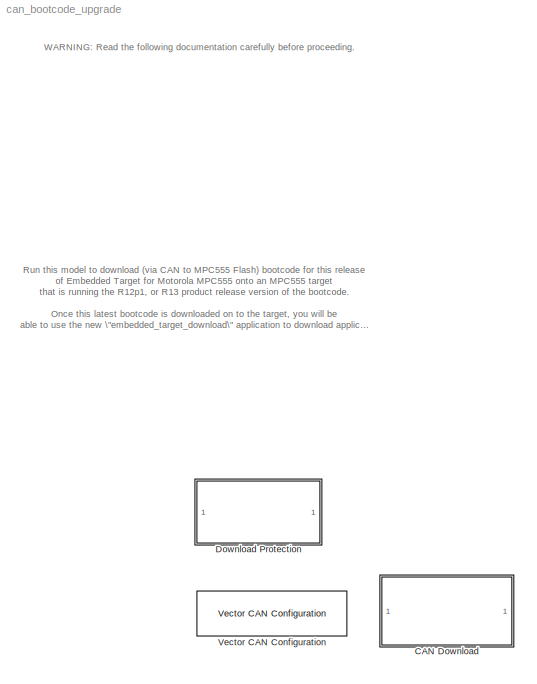
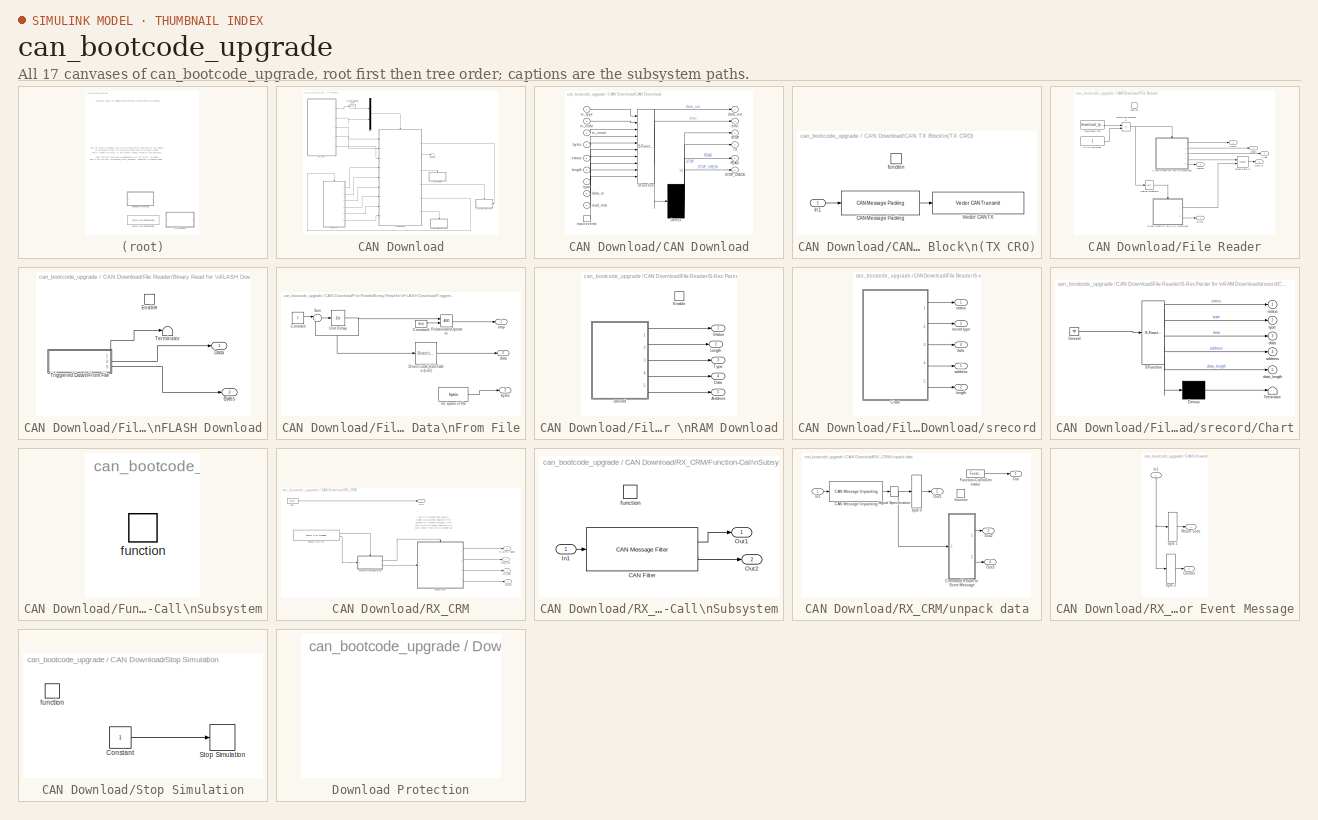
[diagram: thumbnail index - all 17 canvases of the model, root first then tree order]
MODEL can_bootcode_upgrade
KIND model
BLOCK [SubSystem] CAN Download
  MaskCallbackString = ||||
  MaskDisplay = disp('CAN Download');
  MaskEnableString = on,on,on,on,on
  MaskIconFrame = on
  MaskIconOpaque = on
  MaskIconRotate = none
  MaskIconUnits = autoscale
  MaskInitialization = % path to a bin file version of the bootcode\n% for MPC555\ndownload_file = strrep(strrep(mpc5xx_get_bootcode,'CODE_WARRIOR','DIAB'),'s19','bin');\nif (length(download_file) > 256)\n	error('Download Filename longer than 256 characters.');\nend;\n
  MaskPromptString = Download Type|Download Filename|CCP Station Id|CCP CRO Id|CCP DTO Id
  MaskStyleString = popup(RAM Application Code|Flash Application Code|Flash Boot Code),edit,edit,edit,edit
  MaskTabNameString = ,,,,
  MaskToolTipString = on,on,on,on,on
  MaskTunableValueString = off,off,off,off,off
  MaskValueString = Flash Boot Code|0|1|1786|1787
  MaskVarAliasString = ,,,,
  MaskVariables = download_type=@1;download_file=@2;ccp_station_id=@3;ccp_cro_id=@4;ccp_dto_id=@5;
  MaskVisibilityString = on,off,on,on,on
  MinAlgLoopOccurrences = off
  Ports = []
  PropExecContextAcrossSSBoundary = on
  RTWSystemCode = Auto
  TreatAsAtomicUnit = off
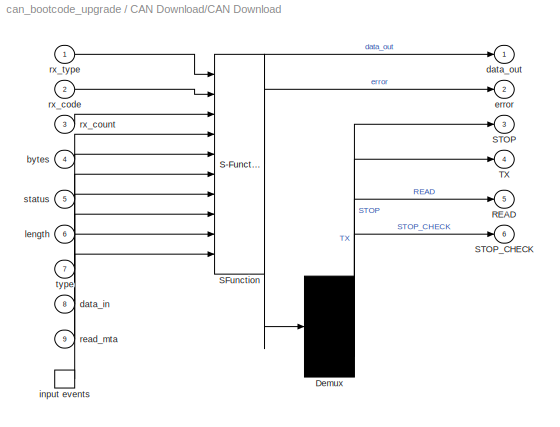
BLOCK [SubSystem] CAN Download/CAN Download
  MaskDescription = Stateflow diagram
  MaskDisplay = plot(sf('Private','sfblk','xIcon'),sf('Private','sfblk','yIcon'));text(0.5,0,sf('Private', 'sfblk', 'tIcon'),'HorizontalAl','Center','VerticalAl','Bottom');
  MaskIconFrame = off
  MaskIconOpaque = off
  MaskIconRotate = none
  MaskIconUnits = autoscale
  MaskSelfModifiable = on
  MaskType = Stateflow
  MinAlgLoopOccurrences = off
  Ports = [9, 6, 0, 1]
  PropExecContextAcrossSSBoundary = on
  RTWSystemCode = Auto
  TreatAsAtomicUnit = on
BLOCK [Demux] CAN Download/CAN Download/ Demux 
  Ports = [1, 4]
BLOCK [S-Function] CAN Download/CAN Download/ SFunction 
  FunctionName = sf_sfun
  Parameters = ccp_station_id,download_type
  PortCounts = [10 3]
  Ports = [10, 3]
  Tag = Stateflow S-Function can_bootcode_upgrade 3
BLOCK [TriggerPort] CAN Download/CAN Download/ input events 
  Ports = [0, 1]
  ShowOutputPort = on
  StatesWhenEnabling = reset
  TriggerType = function-call
  ZeroCross = off
BLOCK [Outport] CAN Download/CAN Download/READ
  IconDisplay = Port number
  Port = 5
BLOCK [Outport] CAN Download/CAN Download/STOP
  IconDisplay = Port number
  Port = 3
BLOCK [Outport] CAN Download/CAN Download/STOP_CHECK
  IconDisplay = Port number
  Port = 6
BLOCK [Outport] CAN Download/CAN Download/TX
  IconDisplay = Port number
  Port = 4
BLOCK [Inport] CAN Download/CAN Download/bytes
  IconDisplay = Port number
  LatchInput = off
  Port = 4
BLOCK [Inport] CAN Download/CAN Download/data_in
  IconDisplay = Port number
  LatchInput = off
  Port = 8
BLOCK [Outport] CAN Download/CAN Download/data_out
  IconDisplay = Port number
BLOCK [Outport] CAN Download/CAN Download/error
  IconDisplay = Port number
  Port = 2
BLOCK [Inport] CAN Download/CAN Download/length
  IconDisplay = Port number
  LatchInput = off
  Port = 6
BLOCK [Inport] CAN Download/CAN Download/read_mta
  IconDisplay = Port number
  LatchInput = off
  Port = 9
BLOCK [Inport] CAN Download/CAN Download/rx_code
  IconDisplay = Port number
  LatchInput = off
  Port = 2
BLOCK [Inport] CAN Download/CAN Download/rx_count
  IconDisplay = Port number
  LatchInput = off
  Port = 3
BLOCK [Inport] CAN Download/CAN Download/rx_type
  IconDisplay = Port number
  LatchInput = off
  Port = 1
BLOCK [Inport] CAN Download/CAN Download/status
  IconDisplay = Port number
  LatchInput = off
  Port = 5
BLOCK [Inport] CAN Download/CAN Download/type
  IconDisplay = Port number
  LatchInput = off
  Port = 7
BLOCK [SubSystem] CAN Download/CAN TX Block\n(TX CRO)
  MinAlgLoopOccurrences = off
  Ports = [1, 0, 0, 1]
  PropExecContextAcrossSSBoundary = on
  RTWSystemCode = Auto
  TreatAsAtomicUnit = on
BLOCK [Reference] CAN Download/CAN TX Block\n(TX CRO)/CAN Message Packing  REF=canblocks/CAN Message Packing  (lib defined in mdl_23c95c2b4c34)
  Ports = [1, 1]
  SourceBlock = canblocks/CAN Message Packing
  SourceType = CAN Message Packing
  endian = Little Endian (Intel)
  id = ccp_cro_id
  message_type = Extended (29-bit identifier)
BLOCK [Inport] CAN Download/CAN TX Block\n(TX CRO)/In1
  IconDisplay = Port number
  LatchInput = off
  Port = 1
BLOCK [Reference] CAN Download/CAN TX Block\n(TX CRO)/Vector CAN TX  REF=vector_candrivers/Vector CAN Transmit
  Ports = [1]
  SourceBlock = vector_candrivers/Vector CAN Transmit
  SourceType = Vector CAN Transmit
  Tag = config1
  sample_time = -1
  tag_param = config1
BLOCK [TriggerPort] CAN Download/CAN TX Block\n(TX CRO)/function
  Ports = []
  StatesWhenEnabling = reset
  TriggerType = function-call
  ZeroCross = off
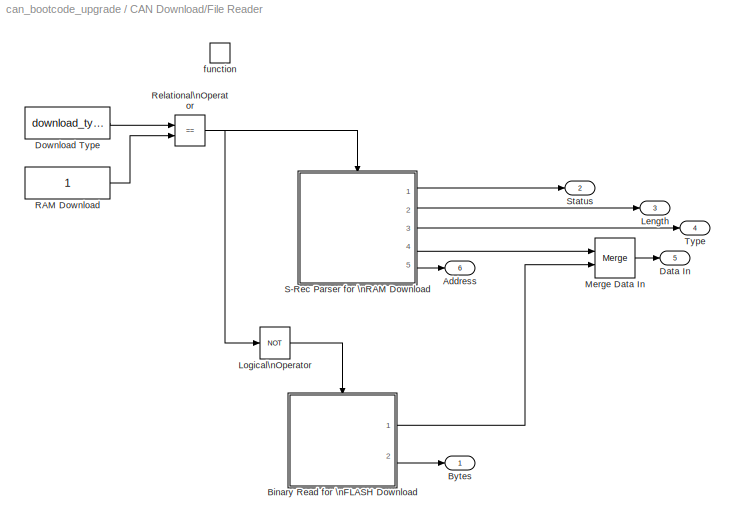
BLOCK [SubSystem] CAN Download/File Reader
  MinAlgLoopOccurrences = off
  Ports = [0, 6, 0, 1]
  PropExecContextAcrossSSBoundary = on
  RTWSystemCode = Auto
  TreatAsAtomicUnit = on
BLOCK [Outport] CAN Download/File Reader/Address
  IconDisplay = Port number
  Port = 6
BLOCK [SubSystem] CAN Download/File Reader/Binary Read for \nFLASH Download
  MinAlgLoopOccurrences = off
  Ports = [0, 2, 1]
  PropExecContextAcrossSSBoundary = on
  RTWSystemCode = Auto
  TreatAsAtomicUnit = on
BLOCK [Outport] CAN Download/File Reader/Binary Read for \nFLASH Download/Bytes
  IconDisplay = Port number
  Port = 2
BLOCK [Outport] CAN Download/File Reader/Binary Read for \nFLASH Download/Data
  IconDisplay = Port number
BLOCK [EnablePort] CAN Download/File Reader/Binary Read for \nFLASH Download/Enable
  Ports = []
  ZeroCross = off
BLOCK [Terminator] CAN Download/File Reader/Binary Read for \nFLASH Download/Terminator
BLOCK [SubSystem] CAN Download/File Reader/Binary Read for \nFLASH Download/Triggered Data\nFrom File
  MaskCallbackString = ||
  MaskDescription = Read a binary file according to the datatype and output the data N bytes at a time. Extra zeros will be padded to the last record if the file is not divisible by N.\n\nThis block will also stop the model when no data is left in the file so set the run time of the model to inf.
  MaskEnableString = on,on,on
  MaskIconFrame = on
  MaskIconOpaque = on
  MaskIconRotate = none
  MaskIconUnits = autoscale
  MaskInitialization = f = fopen(file_name);\ndata = fread(f,inf,['*' dataType ]);\nfclose(f);\nbytes = size(data,1);\ndata = [ data ; zeros(elements-rem(length(data),elements),1) ];\ndata = reshape(data,elements,[]);\nstop = size(data,2)-1;\n\n
  MaskPromptString = File Name|DataType|Number of elements per sample.
  MaskStyleString = edit,popup(uchar|schar|int8|int16|int32|int64|uint8|uint16|uint32|single|float32|double|float64),edit
  MaskTabNameString = ,,
  MaskToolTipString = on,on,on
  MaskTunableValueString = off,off,off
  MaskValueString = download_file|uint8|6
  MaskVarAliasString = ,,
  MaskVariables = file_name=@1;dataType=&2;elements=@3;
  MaskVisibilityString = on,on,on
  MinAlgLoopOccurrences = off
  Ports = [0, 3]
  PropExecContextAcrossSSBoundary = on
  RTWSystemCode = Auto
  TreatAsAtomicUnit = on
BLOCK [Constant] CAN Download/File Reader/Binary Read for \nFLASH Download/Triggered Data\nFrom File/Constant
BLOCK [Constant] CAN Download/File Reader/Binary Read for \nFLASH Download/Triggered Data\nFrom File/Constant1
  Value = stop
BLOCK [Reference] CAN Download/File Reader/Binary Read for \nFLASH Download/Triggered Data\nFrom File/Direct Look-Up\nTable (n-D)  REF=simulink/Lookup\nTables/Direct Lookup\nTable (n-D)
  Ports = [1, 1]
  SourceBlock = simulink/Lookup\nTables/Direct Lookup\nTable (n-D)
  SourceType = LookupNDDirect
  clipFlag = Error
  explicitNumDims = 1
  maskTabDims = 2
  mxTable = data
  outDims = Column
  tabIsInput = off
BLOCK [RelationalOperator] CAN Download/File Reader/Binary Read for \nFLASH Download/Triggered Data\nFrom File/Relational\nOperator
  ZeroCross = off
BLOCK [Sum] CAN Download/File Reader/Binary Read for \nFLASH Download/Triggered Data\nFrom File/Sum
  IconShape = round
  Inputs = |++
  Ports = [2, 1]
BLOCK [UnitDelay] CAN Download/File Reader/Binary Read for \nFLASH Download/Triggered Data\nFrom File/Unit Delay
  SampleTime = -1
BLOCK [Outport] CAN Download/File Reader/Binary Read for \nFLASH Download/Triggered Data\nFrom File/bytes
  IconDisplay = Port number
  Port = 3
BLOCK [Outport] CAN Download/File Reader/Binary Read for \nFLASH Download/Triggered Data\nFrom File/data
  IconDisplay = Port number
  Port = 2
BLOCK [Constant] CAN Download/File Reader/Binary Read for \nFLASH Download/Triggered Data\nFrom File/no. bytes in file
  Value = bytes
BLOCK [Outport] CAN Download/File Reader/Binary Read for \nFLASH Download/Triggered Data\nFrom File/stop
  IconDisplay = Port number
BLOCK [Outport] CAN Download/File Reader/Bytes
  IconDisplay = Port number
BLOCK [Outport] CAN Download/File Reader/Data In
  IconDisplay = Port number
  Port = 5
BLOCK [Constant] CAN Download/File Reader/Download Type
  Value = download_type
BLOCK [Outport] CAN Download/File Reader/Length
  IconDisplay = Port number
  Port = 3
BLOCK [Logic] CAN Download/File Reader/Logical\nOperator
  Operator = NOT
  Ports = [1, 1]
BLOCK [Merge] CAN Download/File Reader/Merge Data In
  Ports = [2, 1]
BLOCK [Constant] CAN Download/File Reader/RAM Download
BLOCK [RelationalOperator] CAN Download/File Reader/Relational\nOperator
  Operator = ==
  ZeroCross = off
BLOCK [SubSystem] CAN Download/File Reader/S-Rec Parser for \nRAM Download
  MinAlgLoopOccurrences = off
  Ports = [0, 5, 1]
  PropExecContextAcrossSSBoundary = on
  RTWSystemCode = Auto
  TreatAsAtomicUnit = on
BLOCK [Outport] CAN Download/File Reader/S-Rec Parser for \nRAM Download/Address
  IconDisplay = Port number
  Port = 5
BLOCK [Outport] CAN Download/File Reader/S-Rec Parser for \nRAM Download/Data
  IconDisplay = Port number
  Port = 4
BLOCK [EnablePort] CAN Download/File Reader/S-Rec Parser for \nRAM Download/Enable
  Ports = []
  ZeroCross = off
BLOCK [Outport] CAN Download/File Reader/S-Rec Parser for \nRAM Download/Length
  IconDisplay = Port number
  Port = 2
BLOCK [Outport] CAN Download/File Reader/S-Rec Parser for \nRAM Download/Status
  IconDisplay = Port number
BLOCK [Outport] CAN Download/File Reader/S-Rec Parser for \nRAM Download/Type
  IconDisplay = Port number
  Port = 3
BLOCK [SubSystem] CAN Download/File Reader/S-Rec Parser for \nRAM Download/srecord
  MaskEnableString = on
  MaskIconFrame = on
  MaskIconOpaque = on
  MaskIconRotate = none
  MaskIconUnits = autoscale
  MaskInitialization = fileName = uint8([ name zeros(1,256 - length(name))]);
  MaskPromptString = fileName
  MaskStyleString = edit
  MaskToolTipString = on
  MaskTunableValueString = off
  MaskValueString = download_file
  MaskVariables = name=@1;
  MaskVisibilityString = on
  MinAlgLoopOccurrences = off
  Ports = [0, 5]
  PropExecContextAcrossSSBoundary = on
  RTWSystemCode = Auto
  TreatAsAtomicUnit = off
BLOCK [SubSystem] CAN Download/File Reader/S-Rec Parser for \nRAM Download/srecord/Chart
  MaskDescription = Stateflow diagram
  MaskDisplay = plot(sf('Private','sfblk','xIcon'),sf('Private','sfblk','yIcon'));text(0.5,0,sf('Private', 'sfblk', 'tIcon'),'HorizontalAl','Center','VerticalAl','Bottom');
  MaskIconFrame = off
  MaskIconOpaque = off
  MaskIconRotate = none
  MaskIconUnits = autoscale
  MaskSelfModifiable = on
  MaskType = Stateflow
  MinAlgLoopOccurrences = off
  Ports = [0, 5]
  PropExecContextAcrossSSBoundary = on
  RTWSystemCode = Auto
  TreatAsAtomicUnit = off
BLOCK [Demux] CAN Download/File Reader/S-Rec Parser for \nRAM Download/srecord/Chart/ Demux 
  Outputs = 1
  Ports = [1, 1]
BLOCK [Ground] CAN Download/File Reader/S-Rec Parser for \nRAM Download/srecord/Chart/ Ground 
BLOCK [S-Function] CAN Download/File Reader/S-Rec Parser for \nRAM Download/srecord/Chart/ SFunction 
  FunctionName = sf_sfun
  Parameters = fileName
  PortCounts = [1 6]
  Ports = [1, 6]
  Tag = Stateflow S-Function can_bootcode_upgrade 1
BLOCK [Terminator] CAN Download/File Reader/S-Rec Parser for \nRAM Download/srecord/Chart/ Terminator 
BLOCK [Outport] CAN Download/File Reader/S-Rec Parser for \nRAM Download/srecord/Chart/address
  IconDisplay = Port number
  Port = 4
BLOCK [Outport] CAN Download/File Reader/S-Rec Parser for \nRAM Download/srecord/Chart/data
  IconDisplay = Port number
  Port = 3
BLOCK [Outport] CAN Download/File Reader/S-Rec Parser for \nRAM Download/srecord/Chart/data_length
  IconDisplay = Port number
  Port = 5
BLOCK [Outport] CAN Download/File Reader/S-Rec Parser for \nRAM Download/srecord/Chart/status
  IconDisplay = Port number
BLOCK [Outport] CAN Download/File Reader/S-Rec Parser for \nRAM Download/srecord/Chart/type
  IconDisplay = Port number
  Port = 2
BLOCK [Outport] CAN Download/File Reader/S-Rec Parser for \nRAM Download/srecord/address
  IconDisplay = Port number
  Port = 5
BLOCK [Outport] CAN Download/File Reader/S-Rec Parser for \nRAM Download/srecord/data
  IconDisplay = Port number
  Port = 4
BLOCK [Outport] CAN Download/File Reader/S-Rec Parser for \nRAM Download/srecord/length
  IconDisplay = Port number
  Port = 2
BLOCK [Outport] CAN Download/File Reader/S-Rec Parser for \nRAM Download/srecord/record type
  IconDisplay = Port number
  Port = 3
BLOCK [Outport] CAN Download/File Reader/S-Rec Parser for \nRAM Download/srecord/status
  IconDisplay = Port number
BLOCK [Outport] CAN Download/File Reader/Status
  IconDisplay = Port number
  Port = 2
BLOCK [Outport] CAN Download/File Reader/Type
  IconDisplay = Port number
  Port = 4
BLOCK [TriggerPort] CAN Download/File Reader/function
  Ports = []
  StatesWhenEnabling = reset
  TriggerType = function-call
  ZeroCross = off
BLOCK [Reference] CAN Download/Function-Call\nMulticaster  REF=mpc555extras/Function-Call\nMulticaster
  Ports = [1, 1]
  ShowPortLabels = on
  SourceBlock = mpc555extras/Function-Call\nMulticaster
  SourceType = Function Call Multicaster
BLOCK [SubSystem] CAN Download/Function-Call\nSubsystem
  MinAlgLoopOccurrences = off
  Ports = [0, 0, 0, 1]
  PropExecContextAcrossSSBoundary = on
  RTWSystemCode = Auto
  TreatAsAtomicUnit = on
BLOCK [TriggerPort] CAN Download/Function-Call\nSubsystem/function
  Ports = []
  StatesWhenEnabling = reset
  TriggerType = function-call
  ZeroCross = off
BLOCK [Mux] CAN Download/Mux
  DisplayOption = bar
  Inputs = 2
  Ports = [2, 1]
BLOCK [SubSystem] CAN Download/RX_CRM
  MinAlgLoopOccurrences = off
  Ports = [0, 5]
  PropExecContextAcrossSSBoundary = on
  RTWSystemCode = Auto
  TreatAsAtomicUnit = off
BLOCK [SubSystem] CAN Download/RX_CRM/Function-Call\nSubsystem
  MinAlgLoopOccurrences = off
  Ports = [1, 2, 0, 1]
  PropExecContextAcrossSSBoundary = on
  RTWSystemCode = Auto
  TreatAsAtomicUnit = on
BLOCK [Reference] CAN Download/RX_CRM/Function-Call\nSubsystem/CAN Filter  REF=canblocks/CAN Message Filter  (lib defined in mdl_23c95c2b4c34)
  Ports = [1, 2]
  ShowPortLabels = on
  SourceBlock = canblocks/CAN Message Filter
  SourceType = CAN Message Filter
  id = [ccp_dto_id]
BLOCK [Inport] CAN Download/RX_CRM/Function-Call\nSubsystem/In1
  IconDisplay = Port number
  LatchInput = off
  Port = 1
BLOCK [Outport] CAN Download/RX_CRM/Function-Call\nSubsystem/Out1
  IconDisplay = Port number
BLOCK [Outport] CAN Download/RX_CRM/Function-Call\nSubsystem/Out2
  IconDisplay = Port number
  Port = 2
BLOCK [TriggerPort] CAN Download/RX_CRM/Function-Call\nSubsystem/function
  Ports = []
  StatesWhenEnabling = reset
  TriggerType = function-call
  ZeroCross = off
BLOCK [Outport] CAN Download/RX_CRM/RX_DTO trigger
  IconDisplay = Port number
  Port = 2
BLOCK [Outport] CAN Download/RX_CRM/TICK
  IconDisplay = Port number
BLOCK [Reference] CAN Download/RX_CRM/Tick  REF=simulink/Ports &\nSubsystems/Function-Call\nGenerator
  AttributesFormatString = Priority=%<Priority>
  Ports = [0, 1]
  Priority = 3
  SourceBlock = simulink/Ports &\nSubsystems/Function-Call\nGenerator
  SourceType = Function-Call Generator
  numberOfIterations = 1
  sample_time = 1
BLOCK [Reference] CAN Download/RX_CRM/Vector CAN RX  REF=vector_candrivers/Vector CAN Receive
  Ports = [0, 2]
  SourceBlock = vector_candrivers/Vector CAN Receive
  SourceType = Vector CAN Receive
  Tag = config1
  frame_type_in = Extended (29-bit identifier)
  ids = ccp_dto_id
  loop = off
  output_time = off
  sample_time = 0.05
  tag_param = config1
BLOCK [Outport] CAN Download/RX_CRM/counter
  IconDisplay = Port number
  Port = 5
BLOCK [Outport] CAN Download/RX_CRM/msg_type
  IconDisplay = Port number
  Port = 3
BLOCK [Outport] CAN Download/RX_CRM/rtn_code
  IconDisplay = Port number
  Port = 4
BLOCK [SubSystem] CAN Download/RX_CRM/unpack data
  MinAlgLoopOccurrences = off
  Ports = [1, 4, 0, 1]
  PropExecContextAcrossSSBoundary = on
  RTWSystemCode = Auto
  TreatAsAtomicUnit = on
BLOCK [Reference] CAN Download/RX_CRM/unpack data/CAN Message Unpacking  REF=canblocks/CAN Message Unpacking/CAN Message Unpacking  (lib defined in mdl_23c95c2b4c34)
  Ports = [1, 1]
  SourceBlock = canblocks/CAN Message Unpacking/CAN Message Unpacking
  SourceType = CAN Message Unpacking
  endian = Little Endian (Intel)
  showData = on
  showID = off
  showLength = off
BLOCK [SubSystem] CAN Download/RX_CRM/unpack data/Command Return or Event Message
  MinAlgLoopOccurrences = off
  Ports = [1, 2]
  PropExecContextAcrossSSBoundary = on
  RTWSystemCode = Auto
  TreatAsAtomicUnit = off
BLOCK [Outport] CAN Download/RX_CRM/unpack data/Command Return or Event Message/Counter
  IconDisplay = Port number
  Port = 2
BLOCK [Inport] CAN Download/RX_CRM/unpack data/Command Return or Event Message/In1
  IconDisplay = Port number
  LatchInput = off
  Port = 1
BLOCK [Outport] CAN Download/RX_CRM/unpack data/Command Return or Event Message/Return Code
  IconDisplay = Port number
BLOCK [Selector] CAN Download/RX_CRM/unpack data/Command Return or Event Message/byte 1
  Elements = 2
  InputPortWidth = 8
  Ports = [1, 1]
BLOCK [Selector] CAN Download/RX_CRM/unpack data/Command Return or Event Message/byte 2
  Elements = 3
  InputPortWidth = 8
  Ports = [1, 1]
BLOCK [Reference] CAN Download/RX_CRM/unpack data/Function-Call\nGenerator  REF=simulink/Ports &\nSubsystems/Function-Call\nGenerator
  Ports = [0, 1]
  SourceBlock = simulink/Ports &\nSubsystems/Function-Call\nGenerator
  SourceType = Function-Call Generator
  numberOfIterations = 1
  sample_time = -1
BLOCK [Inport] CAN Download/RX_CRM/unpack data/In1
  IconDisplay = Port number
  LatchInput = off
  Port = 1
BLOCK [Outport] CAN Download/RX_CRM/unpack data/Out
  IconDisplay = Port number
BLOCK [Outport] CAN Download/RX_CRM/unpack data/Out1
  IconDisplay = Port number
  Port = 2
BLOCK [Outport] CAN Download/RX_CRM/unpack data/Out2
  IconDisplay = Port number
  Port = 3
BLOCK [Outport] CAN Download/RX_CRM/unpack data/Out3
  IconDisplay = Port number
  Port = 4
BLOCK [SignalSpecification] CAN Download/RX_CRM/unpack data/Signal Specification
  DataType = uint8
  Dimensions = 8
BLOCK [Selector] CAN Download/RX_CRM/unpack data/byte 0
  InputPortWidth = 8
  Ports = [1, 1]
BLOCK [TriggerPort] CAN Download/RX_CRM/unpack data/function
  Ports = []
  StatesWhenEnabling = reset
  TriggerType = function-call
  ZeroCross = off
BLOCK [SubSystem] CAN Download/Stop Simulation
  MinAlgLoopOccurrences = off
  Ports = [0, 0, 0, 1]
  PropExecContextAcrossSSBoundary = on
  RTWSystemCode = Auto
  TreatAsAtomicUnit = on
BLOCK [Constant] CAN Download/Stop Simulation/Constant
BLOCK [Stop] CAN Download/Stop Simulation/Stop Simulation
BLOCK [TriggerPort] CAN Download/Stop Simulation/function
  Ports = []
  StatesWhenEnabling = reset
  TriggerType = function-call
  ZeroCross = off
BLOCK [Terminator] CAN Download/Terminator
BLOCK [SubSystem] Download Protection
  LoadFcn = set_param(gcb,'userdata',1);           \nset_param(gcb,'backgroundcolor','red');
  MaskDisplay = disp('Download Protection');
  MaskIconFrame = on
  MaskIconOpaque = on
  MaskIconRotate = none
  MaskIconUnits = autoscale
  MaskInitialization = protection=get_param(gcb,'userdata');\nif protection==1\n	error('Please read the documentation, and then unlock this download model by double clicking the \"Download Protection\". Then try running the model again.');\nend
  MinAlgLoopOccurrences = off
  OpenFcn = set_param(gcb,'userdata',0);             \nset_param(gcb,'backgroundcolor','green');
  Ports = []
  PropExecContextAcrossSSBoundary = on
  RTWSystemCode = Auto
  StopFcn = set_param(gcb,'userdata',1);           \nset_param(gcb,'backgroundcolor','red');
  TreatAsAtomicUnit = off
BLOCK [Reference] Vector CAN Configuration  REF=vector_candrivers/Vector CAN Configuration
  Ports = []
  ShowPortLabels = on
  SourceBlock = vector_candrivers/Vector CAN Configuration
  SourceType = Vector CAN Configuration
  baud_rate = 500 kBaud
  channel_param = None
  manual_bit_timings = off
  presc_in = 1
  sam_in = 1 sample per bit
  sjw_in = 1
  tag_param = config1
  tseg1_in = 8
  tseg2_in = 7
ANNOTATION (root): Run this model to download (via CAN to MPC555 Flash) bootcode for this release\nof Embedded Target for Motorola MPC555 onto an MPC555 target\nthat is running the R12p1, or R13 product release version of the bootcode.\n\nOnce this latest bootcode is downloaded on to the target, you will be \nable to use the new \"embedded_target_download\" application to download application \ncode or new bootcode ...<+665ch>
ANNOTATION (root): WARNING: Read the following documentation carefully before proceeding.
ANNOTATION CAN Download/RX_CRM: The TICK function call is used to \ntrigger the Stateflow diagram in the \nabsence of a received message. Note \nthat the TICK function call is set to a \nlower priority than the RX function call.
LINE CAN Download/CAN Download/ Demux :1 -> CAN Download/CAN Download/STOP:1
LINE CAN Download/CAN Download/ Demux :2 -> CAN Download/CAN Download/TX:1
LINE CAN Download/CAN Download/ Demux :3 -> CAN Download/CAN Download/READ:1
LINE CAN Download/CAN Download/ Demux :4 -> CAN Download/CAN Download/STOP_CHECK:1
LINE CAN Download/CAN Download/ SFunction :1 -> CAN Download/CAN Download/ Demux :1
LINE CAN Download/CAN Download/ SFunction :2 -> CAN Download/CAN Download/data_out:1
LINE CAN Download/CAN Download/ SFunction :3 -> CAN Download/CAN Download/error:1
LINE CAN Download/CAN Download/ input events :1 -> CAN Download/CAN Download/ SFunction :10
LINE CAN Download/CAN Download/bytes:1 -> CAN Download/CAN Download/ SFunction :4
LINE CAN Download/CAN Download/data_in:1 -> CAN Download/CAN Download/ SFunction :8
LINE CAN Download/CAN Download/length:1 -> CAN Download/CAN Download/ SFunction :6
LINE CAN Download/CAN Download/read_mta:1 -> CAN Download/CAN Download/ SFunction :9
LINE CAN Download/CAN Download/rx_code:1 -> CAN Download/CAN Download/ SFunction :2
LINE CAN Download/CAN Download/rx_count:1 -> CAN Download/CAN Download/ SFunction :3
LINE CAN Download/CAN Download/rx_type:1 -> CAN Download/CAN Download/ SFunction :1
LINE CAN Download/CAN Download/status:1 -> CAN Download/CAN Download/ SFunction :5
LINE CAN Download/CAN Download/type:1 -> CAN Download/CAN Download/ SFunction :7
LINE CAN Download/CAN Download:1 -> CAN Download/CAN TX Block\n(TX CRO):1
LINE CAN Download/CAN Download:2 -> CAN Download/Terminator:1
LINE CAN Download/CAN Download:3 -> CAN Download/Stop Simulation:trigger
LINE CAN Download/CAN Download:4 -> CAN Download/CAN TX Block\n(TX CRO):trigger
LINE CAN Download/CAN Download:5 -> CAN Download/File Reader:trigger
LINE CAN Download/CAN Download:6 -> CAN Download/Function-Call\nSubsystem:trigger
LINE CAN Download/CAN TX Block\n(TX CRO)/CAN Message Packing:1 -> CAN Download/CAN TX Block\n(TX CRO)/Vector CAN TX:1
LINE CAN Download/CAN TX Block\n(TX CRO)/In1:1 -> CAN Download/CAN TX Block\n(TX CRO)/CAN Message Packing:1
LINE CAN Download/File Reader/Binary Read for \nFLASH Download/Triggered Data\nFrom File/Constant1:1 -> CAN Download/File Reader/Binary Read for \nFLASH Download/Triggered Data\nFrom File/Relational\nOperator:2
LINE CAN Download/File Reader/Binary Read for \nFLASH Download/Triggered Data\nFrom File/Constant:1 -> CAN Download/File Reader/Binary Read for \nFLASH Download/Triggered Data\nFrom File/Sum:1
LINE CAN Download/File Reader/Binary Read for \nFLASH Download/Triggered Data\nFrom File/Direct Look-Up\nTable (n-D):1 -> CAN Download/File Reader/Binary Read for \nFLASH Download/Triggered Data\nFrom File/data:1
LINE CAN Download/File Reader/Binary Read for \nFLASH Download/Triggered Data\nFrom File/Relational\nOperator:1 -> CAN Download/File Reader/Binary Read for \nFLASH Download/Triggered Data\nFrom File/stop:1
LINE CAN Download/File Reader/Binary Read for \nFLASH Download/Triggered Data\nFrom File/Sum:1 -> CAN Download/File Reader/Binary Read for \nFLASH Download/Triggered Data\nFrom File/Unit Delay:1
NET CAN Download/File Reader/Binary Read for \nFLASH Download/Triggered Data\nFrom File/Unit Delay:1 -> CAN Download/File Reader/Binary Read for \nFLASH Download/Triggered Data\nFrom File/Direct Look-Up\nTable (n-D):1, CAN Download/File Reader/Binary Read for \nFLASH Download/Triggered Data\nFrom File/Relational\nOperator:1, CAN Download/File Reader/Binary Read for \nFLASH Download/Triggered Data\nFrom File/Sum:2
LINE CAN Download/File Reader/Binary Read for \nFLASH Download/Triggered Data\nFrom File/no. bytes in file:1 -> CAN Download/File Reader/Binary Read for \nFLASH Download/Triggered Data\nFrom File/bytes:1
LINE CAN Download/File Reader/Binary Read for \nFLASH Download/Triggered Data\nFrom File:1 -> CAN Download/File Reader/Binary Read for \nFLASH Download/Terminator:1
LINE CAN Download/File Reader/Binary Read for \nFLASH Download/Triggered Data\nFrom File:2 -> CAN Download/File Reader/Binary Read for \nFLASH Download/Data:1
LINE CAN Download/File Reader/Binary Read for \nFLASH Download/Triggered Data\nFrom File:3 -> CAN Download/File Reader/Binary Read for \nFLASH Download/Bytes:1
LINE CAN Download/File Reader/Binary Read for \nFLASH Download:1 -> CAN Download/File Reader/Merge Data In:2
LINE CAN Download/File Reader/Binary Read for \nFLASH Download:2 -> CAN Download/File Reader/Bytes:1
LINE CAN Download/File Reader/Download Type:1 -> CAN Download/File Reader/Relational\nOperator:1
LINE CAN Download/File Reader/Logical\nOperator:1 -> CAN Download/File Reader/Binary Read for \nFLASH Download:enable
LINE CAN Download/File Reader/Merge Data In:1 -> CAN Download/File Reader/Data In:1
LINE CAN Download/File Reader/RAM Download:1 -> CAN Download/File Reader/Relational\nOperator:2
NET CAN Download/File Reader/Relational\nOperator:1 -> CAN Download/File Reader/Logical\nOperator:1, CAN Download/File Reader/S-Rec Parser for \nRAM Download:enable
LINE CAN Download/File Reader/S-Rec Parser for \nRAM Download/srecord/Chart/ Demux :1 -> CAN Download/File Reader/S-Rec Parser for \nRAM Download/srecord/Chart/ Terminator :1
LINE CAN Download/File Reader/S-Rec Parser for \nRAM Download/srecord/Chart/ Ground :1 -> CAN Download/File Reader/S-Rec Parser for \nRAM Download/srecord/Chart/ SFunction :1
LINE CAN Download/File Reader/S-Rec Parser for \nRAM Download/srecord/Chart/ SFunction :1 -> CAN Download/File Reader/S-Rec Parser for \nRAM Download/srecord/Chart/ Demux :1
LINE CAN Download/File Reader/S-Rec Parser for \nRAM Download/srecord/Chart/ SFunction :2 -> CAN Download/File Reader/S-Rec Parser for \nRAM Download/srecord/Chart/status:1
LINE CAN Download/File Reader/S-Rec Parser for \nRAM Download/srecord/Chart/ SFunction :3 -> CAN Download/File Reader/S-Rec Parser for \nRAM Download/srecord/Chart/type:1
LINE CAN Download/File Reader/S-Rec Parser for \nRAM Download/srecord/Chart/ SFunction :4 -> CAN Download/File Reader/S-Rec Parser for \nRAM Download/srecord/Chart/data:1
LINE CAN Download/File Reader/S-Rec Parser for \nRAM Download/srecord/Chart/ SFunction :5 -> CAN Download/File Reader/S-Rec Parser for \nRAM Download/srecord/Chart/address:1
LINE CAN Download/File Reader/S-Rec Parser for \nRAM Download/srecord/Chart/ SFunction :6 -> CAN Download/File Reader/S-Rec Parser for \nRAM Download/srecord/Chart/data_length:1
LINE CAN Download/File Reader/S-Rec Parser for \nRAM Download/srecord/Chart:1 -> CAN Download/File Reader/S-Rec Parser for \nRAM Download/srecord/status:1
LINE CAN Download/File Reader/S-Rec Parser for \nRAM Download/srecord/Chart:2 -> CAN Download/File Reader/S-Rec Parser for \nRAM Download/srecord/record type:1
LINE CAN Download/File Reader/S-Rec Parser for \nRAM Download/srecord/Chart:3 -> CAN Download/File Reader/S-Rec Parser for \nRAM Download/srecord/data:1
LINE CAN Download/File Reader/S-Rec Parser for \nRAM Download/srecord/Chart:4 -> CAN Download/File Reader/S-Rec Parser for \nRAM Download/srecord/address:1
LINE CAN Download/File Reader/S-Rec Parser for \nRAM Download/srecord/Chart:5 -> CAN Download/File Reader/S-Rec Parser for \nRAM Download/srecord/length:1
LINE CAN Download/File Reader/S-Rec Parser for \nRAM Download/srecord:1 -> CAN Download/File Reader/S-Rec Parser for \nRAM Download/Status:1
LINE CAN Download/File Reader/S-Rec Parser for \nRAM Download/srecord:2 -> CAN Download/File Reader/S-Rec Parser for \nRAM Download/Length:1
LINE CAN Download/File Reader/S-Rec Parser for \nRAM Download/srecord:3 -> CAN Download/File Reader/S-Rec Parser for \nRAM Download/Type:1
LINE CAN Download/File Reader/S-Rec Parser for \nRAM Download/srecord:4 -> CAN Download/File Reader/S-Rec Parser for \nRAM Download/Data:1
LINE CAN Download/File Reader/S-Rec Parser for \nRAM Download/srecord:5 -> CAN Download/File Reader/S-Rec Parser for \nRAM Download/Address:1
LINE CAN Download/File Reader/S-Rec Parser for \nRAM Download:1 -> CAN Download/File Reader/Status:1
LINE CAN Download/File Reader/S-Rec Parser for \nRAM Download:2 -> CAN Download/File Reader/Length:1
LINE CAN Download/File Reader/S-Rec Parser for \nRAM Download:3 -> CAN Download/File Reader/Type:1
LINE CAN Download/File Reader/S-Rec Parser for \nRAM Download:4 -> CAN Download/File Reader/Merge Data In:1
LINE CAN Download/File Reader/S-Rec Parser for \nRAM Download:5 -> CAN Download/File Reader/Address:1
LINE CAN Download/File Reader:1 -> CAN Download/CAN Download:4
LINE CAN Download/File Reader:2 -> CAN Download/CAN Download:5
LINE CAN Download/File Reader:3 -> CAN Download/CAN Download:6
LINE CAN Download/File Reader:4 -> CAN Download/CAN Download:7
LINE CAN Download/File Reader:5 -> CAN Download/CAN Download:8
LINE CAN Download/File Reader:6 -> CAN Download/CAN Download:9
LINE CAN Download/Function-Call\nMulticaster:1 -> CAN Download/Mux:1
LINE CAN Download/Mux:1 -> CAN Download/CAN Download:trigger
LINE CAN Download/RX_CRM/Function-Call\nSubsystem/CAN Filter:1 -> CAN Download/RX_CRM/Function-Call\nSubsystem/Out1:1
LINE CAN Download/RX_CRM/Function-Call\nSubsystem/CAN Filter:2 -> CAN Download/RX_CRM/Function-Call\nSubsystem/Out2:1
LINE CAN Download/RX_CRM/Function-Call\nSubsystem/In1:1 -> CAN Download/RX_CRM/Function-Call\nSubsystem/CAN Filter:1
LINE CAN Download/RX_CRM/Function-Call\nSubsystem:1 -> CAN Download/RX_CRM/unpack data:trigger
LINE CAN Download/RX_CRM/Function-Call\nSubsystem:2 -> CAN Download/RX_CRM/unpack data:1
LINE CAN Download/RX_CRM/Tick:1 -> CAN Download/RX_CRM/TICK:1
LINE CAN Download/RX_CRM/Vector CAN RX:1 -> CAN Download/RX_CRM/Function-Call\nSubsystem:trigger
LINE CAN Download/RX_CRM/Vector CAN RX:2 -> CAN Download/RX_CRM/Function-Call\nSubsystem:1
LINE CAN Download/RX_CRM/unpack data/CAN Message Unpacking:1 -> CAN Download/RX_CRM/unpack data/Signal Specification:1
NET CAN Download/RX_CRM/unpack data/Command Return or Event Message/In1:1 -> CAN Download/RX_CRM/unpack data/Command Return or Event Message/byte 1:1, CAN Download/RX_CRM/unpack data/Command Return or Event Message/byte 2:1
LINE CAN Download/RX_CRM/unpack data/Command Return or Event Message/byte 1:1 -> CAN Download/RX_CRM/unpack data/Command Return or Event Message/Return Code:1
LINE CAN Download/RX_CRM/unpack data/Command Return or Event Message/byte 2:1 -> CAN Download/RX_CRM/unpack data/Command Return or Event Message/Counter:1
LINE CAN Download/RX_CRM/unpack data/Command Return or Event Message:1 -> CAN Download/RX_CRM/unpack data/Out2:1
LINE CAN Download/RX_CRM/unpack data/Command Return or Event Message:2 -> CAN Download/RX_CRM/unpack data/Out3:1
LINE CAN Download/RX_CRM/unpack data/Function-Call\nGenerator:1 -> CAN Download/RX_CRM/unpack data/Out:1
LINE CAN Download/RX_CRM/unpack data/In1:1 -> CAN Download/RX_CRM/unpack data/CAN Message Unpacking:1
NET CAN Download/RX_CRM/unpack data/Signal Specification:1 -> CAN Download/RX_CRM/unpack data/Command Return or Event Message:1, CAN Download/RX_CRM/unpack data/byte 0:1
LINE CAN Download/RX_CRM/unpack data/byte 0:1 -> CAN Download/RX_CRM/unpack data/Out1:1
LINE CAN Download/RX_CRM/unpack data:1 -> CAN Download/RX_CRM/RX_DTO trigger:1
LINE CAN Download/RX_CRM/unpack data:2 -> CAN Download/RX_CRM/msg_type:1
LINE CAN Download/RX_CRM/unpack data:3 -> CAN Download/RX_CRM/rtn_code:1
LINE CAN Download/RX_CRM/unpack data:4 -> CAN Download/RX_CRM/counter:1
LINE CAN Download/RX_CRM:1 -> CAN Download/Function-Call\nMulticaster:1
LINE CAN Download/RX_CRM:2 -> CAN Download/Mux:2
LINE CAN Download/RX_CRM:3 -> CAN Download/CAN Download:1
LINE CAN Download/RX_CRM:4 -> CAN Download/CAN Download:2
LINE CAN Download/RX_CRM:5 -> CAN Download/CAN Download:3
LINE CAN Download/Stop Simulation/Constant:1 -> CAN Download/Stop Simulation/Stop Simulation:1
note: NET lines group one-source signal fan-out (src -> all destinations, sorted); 1:1 wires keep LINE
CHART CAN Download/File Reader/S-Rec Parser for \nRAM Download/srecord/Chart states=4 transitions=38
  STATE_LABEL 'File_Open\\nen:status=1;'
  STATE_LABEL 'File_Not_Open\\nen:status=0'
  STATE_LABEL 'File_Finished'
  STATE_LABEL 'stop = process_data(address_size)'
CHART CAN Download/CAN Download states=36 transitions=80
  STATE_LABEL 'program6\\nen:send_program6();'
  STATE_LABEL "success\\nen:error = 0;\\nen:printf('Download completed successfully.\\\\n');\\nen:STOP;"
  STATE_LABEL 'Programming'
  STATE_LABEL 'connect\\nen:send_connect();\\nen:connect_count++;'
  STATE_LABEL 'set_mta_for_clear\\nen:send_set_mta(base_offset);'
  STATE_LABEL 'clear_block\\nen:send_clear();'
  STATE_LABEL "failed\\nen:error = 1;\\nen:printf('Error during download process.\\\\n');\\nen:STOP;"
  STATE_LABEL 'end_download\\nen:send_program(0);'
  STATE_LABEL 'set_mta_to_base\\nen:send_set_mta(base_offset);'
  STATE_LABEL 'send_set_mta_generic(address)'
  STATE_LABEL 'program_last_bytes\\nen:send_program(last_bytes);'
  STATE_LABEL "program_prepa\\nen:ml('disp('' '')');\\nen:ml('disp(sprintf(''Connect message acknowledged, starting download.''))');\\nen:ml('disp(sprintf(''(Progress can be monitored using a CAN bus monitor)''))');\\nen:ml('errorStatus = vector_can_interface(''flushtxqueues'');');\\nen:send_program_prepare();"
  STATE_LABEL 'send_connect()'
  STATE_LABEL 'Station Id (2 byte word) is processed - Intel LE format\\nLow byte first, then high byte.'
  STATE_LABEL 'send_program_prepare()'
  STATE_LABEL 'Clear_Flash'
  STATE_LABEL 'send_set_mta(base_offset)'
  STATE_LABEL 'send_clear()'
  STATE_LABEL 'Program_Flash'
  STATE_LABEL 'send_program6()'
  STATE_LABEL 'send_program(num_bytes)'
  STATE_LABEL 'Flash_Download'
  STATE_LABEL 'dnload\\nen:send_dnload(length);'
  STATE_LABEL 'end_download\\nen:send_dnload(0);'
  STATE_LABEL 'set_mta\\nen:local_mta = read_mta + 0x800000;\\nen:send_set_mta_generic(local_mta);'
  STATE_LABEL 'dnload6\\nen:send_dnload6();'
  STATE_LABEL 'send_dnload6()'
  STATE_LABEL 'send_dnload(num_bytes)'
  STATE_LABEL 'Functions to setup the\\nCCP packets to transmit.'
  STATE_LABEL 'Failure state reached when the command return code\\nin the DTO is not 0 (== no error).   Possibilities may be\\n0x30 == unkown command etc.   Check using a CAN\\nmonitor to see what actually happened.'
  STATE_LABEL 'Perform CAN download of binary data\\nto RAM or FLASH on the target.'
  STATE_LABEL 'Ram_Download_Srec'
  STATE_LABEL 'Execution_Start'
  STATE_LABEL 'Normal_Write'
  STATE_LABEL 'Process_Srec_Packet'
  STATE_LABEL 'calculate_iterations\\nen:write6iterations=floor(bytes/6);\\nen:last_bytes=bytes-(6*floor(bytes/6));\\nen:clear_iterations = ceil(bytes/32/kb);'
